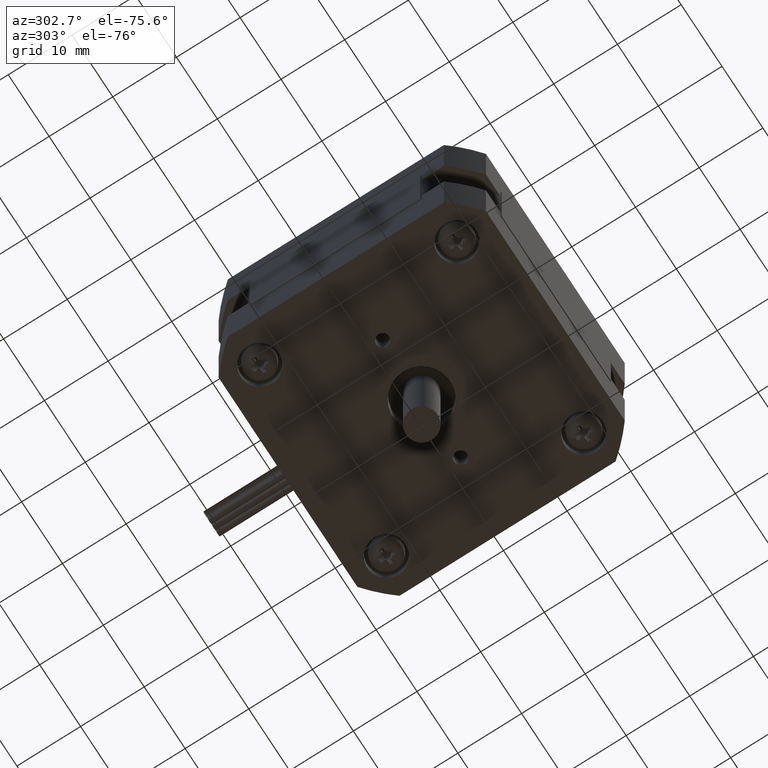
[diagram: clean part render]
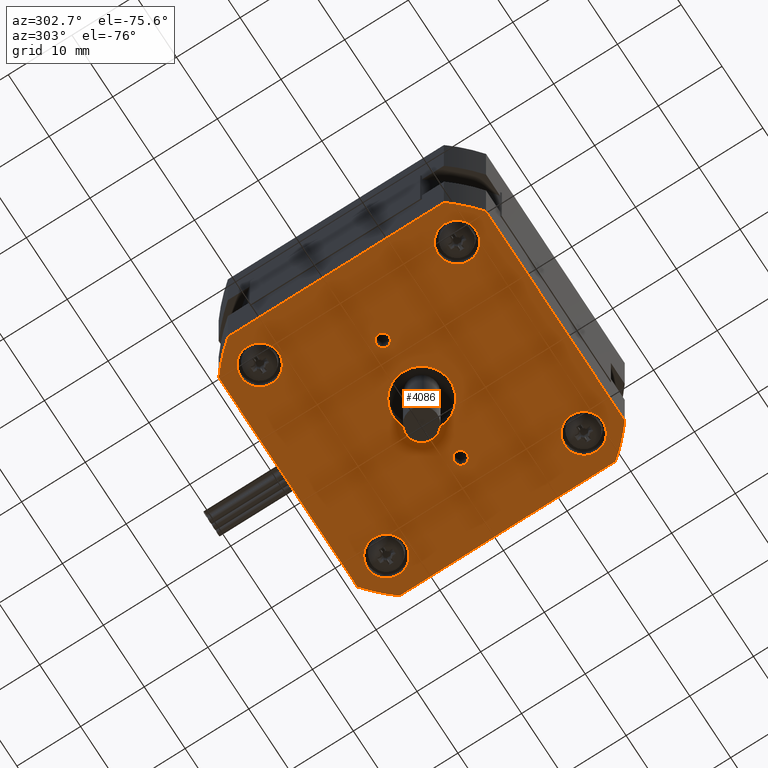
[diagram: same view with one face highlighted and labeled with its STEP entity id]
A machine part, auxiliary view. The second image highlights one B-rep face of the part: STEP entity #4086.
In plain terms, the highlighted planar face has unit normal (-0, 0, -1).
Its self-contained STEP definition (entity closure, byte-faithful):
#177=LINE('',#6368,#425);
#187=LINE('',#6396,#435);
#189=LINE('',#6402,#437);
#190=LINE('',#6406,#438);
#425=VECTOR('',#5100,33.9411254969543);
#435=VECTOR('',#5128,33.9411254969543);
#437=VECTOR('',#5134,33.9411254969543);
#438=VECTOR('',#5137,33.9411254969543);
#642=PLANE('',#4418);
#770=FACE_BOUND('',#1235,.T.);
#771=FACE_BOUND('',#1236,.T.);
#772=FACE_BOUND('',#1237,.T.);
#773=FACE_BOUND('',#1238,.T.);
#774=FACE_BOUND('',#1239,.T.);
#775=FACE_BOUND('',#1240,.T.);
#776=FACE_BOUND('',#1241,.T.);
#942=FACE_OUTER_BOUND('',#1234,.T.);
#1234=EDGE_LOOP('',(#2928,#2929,#2930,#2931,#2932,#2933,#2934,#2935));
#1235=EDGE_LOOP('',(#2936));
#1236=EDGE_LOOP('',(#2937));
#1237=EDGE_LOOP('',(#2938));
#1238=EDGE_LOOP('',(#2939));
#1239=EDGE_LOOP('',(#2940));
#1240=EDGE_LOOP('',(#2941));
#1241=EDGE_LOOP('',(#2942));
#1524=CIRCLE('',#4373,4.5);
#1547=CIRCLE('',#4419,27.);
#1548=CIRCLE('',#4420,27.);
#1549=CIRCLE('',#4421,27.);
#1550=CIRCLE('',#4422,27.);
#1551=CIRCLE('',#4423,1.0065);
#1552=CIRCLE('',#4424,1.0065);
#1553=CIRCLE('',#4425,3.);
#1554=CIRCLE('',#4426,3.);
#1555=CIRCLE('',#4427,3.);
#1556=CIRCLE('',#4428,3.);
#1788=VERTEX_POINT('',#6274);
#1818=VERTEX_POINT('',#6365);
#1819=VERTEX_POINT('',#6367);
#1827=VERTEX_POINT('',#6393);
#1828=VERTEX_POINT('',#6395);
#1829=VERTEX_POINT('',#6399);
#1830=VERTEX_POINT('',#6401);
#1831=VERTEX_POINT('',#6403);
#1832=VERTEX_POINT('',#6405);
#1833=VERTEX_POINT('',#6409);
#1834=VERTEX_POINT('',#6411);
#1835=VERTEX_POINT('',#6413);
#1836=VERTEX_POINT('',#6415);
#1837=VERTEX_POINT('',#6417);
#1838=VERTEX_POINT('',#6419);
#2200=EDGE_CURVE('',#1788,#1788,#1524,.T.);
#2245=EDGE_CURVE('',#1818,#1819,#177,.T.);
#2259=EDGE_CURVE('',#1827,#1828,#187,.T.);
#2261=EDGE_CURVE('',#1829,#1827,#1547,.T.);
#2262=EDGE_CURVE('',#1830,#1829,#189,.T.);
#2263=EDGE_CURVE('',#1831,#1830,#1548,.T.);
#2264=EDGE_CURVE('',#1832,#1831,#190,.T.);
#2265=EDGE_CURVE('',#1819,#1832,#1549,.T.);
#2266=EDGE_CURVE('',#1828,#1818,#1550,.T.);
#2267=EDGE_CURVE('',#1833,#1833,#1551,.T.);
#2268=EDGE_CURVE('',#1834,#1834,#1552,.T.);
#2269=EDGE_CURVE('',#1835,#1835,#1553,.T.);
#2270=EDGE_CURVE('',#1836,#1836,#1554,.T.);
#2271=EDGE_CURVE('',#1837,#1837,#1555,.T.);
#2272=EDGE_CURVE('',#1838,#1838,#1556,.T.);
#2928=ORIENTED_EDGE('',*,*,#2259,.F.);
#2929=ORIENTED_EDGE('',*,*,#2261,.F.);
#2930=ORIENTED_EDGE('',*,*,#2262,.F.);
#2931=ORIENTED_EDGE('',*,*,#2263,.F.);
#2932=ORIENTED_EDGE('',*,*,#2264,.F.);
#2933=ORIENTED_EDGE('',*,*,#2265,.F.);
#2934=ORIENTED_EDGE('',*,*,#2245,.F.);
#2935=ORIENTED_EDGE('',*,*,#2266,.F.);
#2936=ORIENTED_EDGE('',*,*,#2200,.T.);
#2937=ORIENTED_EDGE('',*,*,#2267,.T.);
#2938=ORIENTED_EDGE('',*,*,#2268,.T.);
#2939=ORIENTED_EDGE('',*,*,#2269,.T.);
#2940=ORIENTED_EDGE('',*,*,#2270,.T.);
#2941=ORIENTED_EDGE('',*,*,#2271,.T.);
#2942=ORIENTED_EDGE('',*,*,#2272,.T.);
#4086=ADVANCED_FACE('',(#942,#770,#771,#772,#773,#774,#775,#776),#642,.T.);
#4373=AXIS2_PLACEMENT_3D('',#6275,#5002,#5003);
#4418=AXIS2_PLACEMENT_3D('',#6398,#5130,#5131);
#4419=AXIS2_PLACEMENT_3D('',#6400,#5132,#5133);
#4420=AXIS2_PLACEMENT_3D('',#6404,#5135,#5136);
#4421=AXIS2_PLACEMENT_3D('',#6407,#5138,#5139);
#4422=AXIS2_PLACEMENT_3D('',#6408,#5140,#5141);
#4423=AXIS2_PLACEMENT_3D('',#6410,#5142,#5143);
#4424=AXIS2_PLACEMENT_3D('',#6412,#5144,#5145);
#4425=AXIS2_PLACEMENT_3D('',#6414,#5146,#5147);
#4426=AXIS2_PLACEMENT_3D('',#6416,#5148,#5149);
#4427=AXIS2_PLACEMENT_3D('',#6418,#5150,#5151);
#4428=AXIS2_PLACEMENT_3D('',#6420,#5152,#5153);
#5002=DIRECTION('center_axis',(7.88860905221012E-31,-1.23259516440783E-31,
1.));
#5003=DIRECTION('ref_axis',(-1.,8.62816615085482E-32,7.88860905221012E-31));
#5100=DIRECTION('',(8.62816615085482E-32,1.,1.23259516440783E-31));
#5128=DIRECTION('',(1.,-8.62816615085482E-32,-7.88860905221012E-31));
#5130=DIRECTION('center_axis',(-7.88860905221012E-31,1.23259516440783E-31,
-1.));
#5131=DIRECTION('ref_axis',(1.,-7.88860905221012E-32,0.));
#5132=DIRECTION('center_axis',(7.88860905221012E-31,-1.23259516440783E-31,
1.));
#5133=DIRECTION('ref_axis',(0.628539361054709,0.777777777777778,-3.99961616541378E-31));
#5134=DIRECTION('',(-8.62816615085482E-32,-1.,-1.23259516440783E-31));
#5135=DIRECTION('center_axis',(7.88860905221012E-31,-1.23259516440783E-31,
1.));
#5136=DIRECTION('ref_axis',(0.777777777777778,-0.628539361054708,-6.91031939546168E-31));
#5137=DIRECTION('',(-1.,8.62816615085482E-32,7.88860905221012E-31));
#5138=DIRECTION('center_axis',(7.88860905221012E-31,-1.23259516440783E-31,
1.));
#5139=DIRECTION('ref_axis',(-0.628539361054709,-0.777777777777778,3.99961616541378E-31));
#5140=DIRECTION('center_axis',(7.88860905221012E-31,-1.23259516440783E-31,
1.));
#5141=DIRECTION('ref_axis',(-0.777777777777778,0.628539361054709,6.91031939546167E-31));
#5142=DIRECTION('center_axis',(7.88860905221012E-31,-1.23259516440783E-31,
1.));
#5143=DIRECTION('ref_axis',(1.,-8.62816615085482E-32,-7.88860905221012E-31));
#5144=DIRECTION('center_axis',(7.88860905221012E-31,-1.23259516440783E-31,
1.));
#5145=DIRECTION('ref_axis',(1.,-8.62816615085482E-32,-7.88860905221012E-31));
#5146=DIRECTION('center_axis',(7.88860905221012E-31,-1.23259516440783E-31,
1.));
#5147=DIRECTION('ref_axis',(1.,-8.62816615085482E-32,-7.88860905221012E-31));
#5148=DIRECTION('center_axis',(7.88860905221012E-31,-1.23259516440783E-31,
1.));
#5149=DIRECTION('ref_axis',(1.,-8.62816615085482E-32,-7.88860905221012E-31));
#5150=DIRECTION('center_axis',(7.88860905221012E-31,-1.23259516440783E-31,
1.));
#5151=DIRECTION('ref_axis',(1.,-8.62816615085482E-32,-7.88860905221012E-31));
#5152=DIRECTION('center_axis',(7.88860905221012E-31,-1.23259516440783E-31,
1.));
#5153=DIRECTION('ref_axis',(1.,-8.62816615085482E-32,-7.88860905221012E-31));
#6274=CARTESIAN_POINT('',(4.5,4.12020840495009E-15,-24.5));
#6275=CARTESIAN_POINT('Origin',(3.01309290910702E-15,4.67129946456639E-15,
-24.5));
#6365=CARTESIAN_POINT('',(21.,-16.9705627484771,-24.5));
#6367=CARTESIAN_POINT('',(21.,16.9705627484771,-24.5));
#6368=CARTESIAN_POINT('',(21.,-16.9705627484771,-24.5));
#6393=CARTESIAN_POINT('',(-16.9705627484771,-21.,-24.5));
#6395=CARTESIAN_POINT('',(16.9705627484771,-21.,-24.5));
#6396=CARTESIAN_POINT('',(-16.9705627484771,-21.,-24.5));
#6398=CARTESIAN_POINT('Origin',(-2.81557809089298E-15,5.22641096456639E-15,
-24.5));
#6399=CARTESIAN_POINT('',(-21.,-16.9705627484771,-24.5));
#6400=CARTESIAN_POINT('Origin',(3.01309290910702E-15,4.67129946456639E-15,
-24.5));
#6401=CARTESIAN_POINT('',(-21.,16.9705627484771,-24.5));
#6402=CARTESIAN_POINT('',(-21.,16.9705627484771,-24.5));
#6403=CARTESIAN_POINT('',(-16.9705627484771,21.,-24.5));
#6404=CARTESIAN_POINT('Origin',(3.01309290910702E-15,4.67129946456639E-15,
-24.5));
#6405=CARTESIAN_POINT('',(16.9705627484771,21.,-24.5));
#6406=CARTESIAN_POINT('',(16.9705627484771,21.,-24.5));
#6407=CARTESIAN_POINT('Origin',(3.01309290910702E-15,4.67129946456639E-15,
-24.5));
#6408=CARTESIAN_POINT('Origin',(3.01309290910702E-15,4.67129946456639E-15,
-24.5));
#6409=CARTESIAN_POINT('',(-8.5185,6.4233704645664E-15,-24.5));
#6410=CARTESIAN_POINT('Origin',(-9.525,6.4233704645664E-15,-24.5));
#6411=CARTESIAN_POINT('',(10.5315,1.75746546456639E-15,-24.5));
#6412=CARTESIAN_POINT('Origin',(9.52500000000001,1.75746546456639E-15,-24.5));
#6413=CARTESIAN_POINT('',(-12.5,-15.5,-24.5));
#6414=CARTESIAN_POINT('Origin',(-15.5,-15.5,-24.5));
#6415=CARTESIAN_POINT('',(18.5,-15.5,-24.5));
#6416=CARTESIAN_POINT('Origin',(15.5,-15.5,-24.5));
#6417=CARTESIAN_POINT('',(-12.5,15.5,-24.5));
#6418=CARTESIAN_POINT('Origin',(-15.5,15.5,-24.5));
#6419=CARTESIAN_POINT('',(18.5,15.5,-24.5));
#6420=CARTESIAN_POINT('Origin',(15.5,15.5,-24.5));